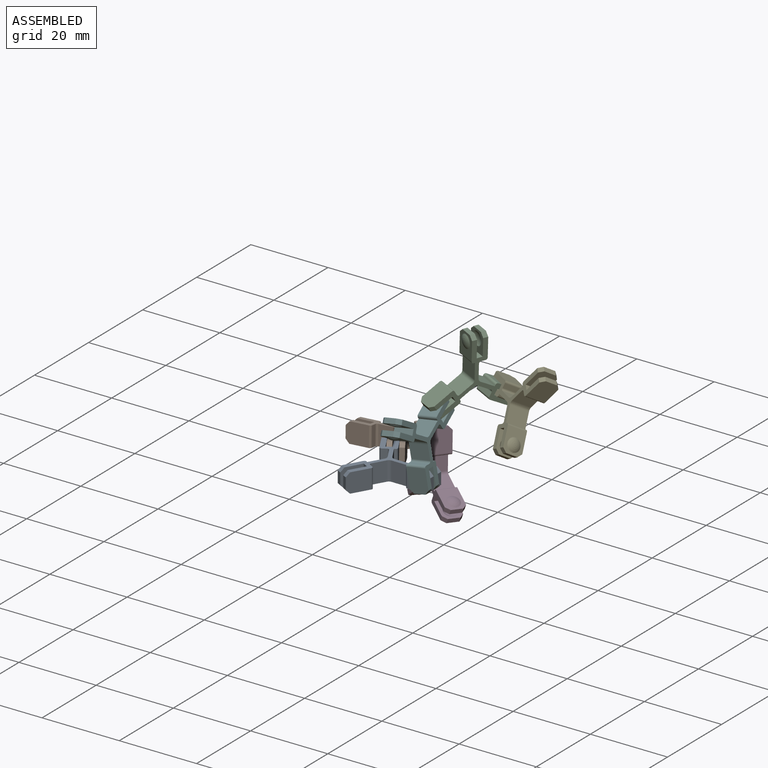
[diagram: assembled view]
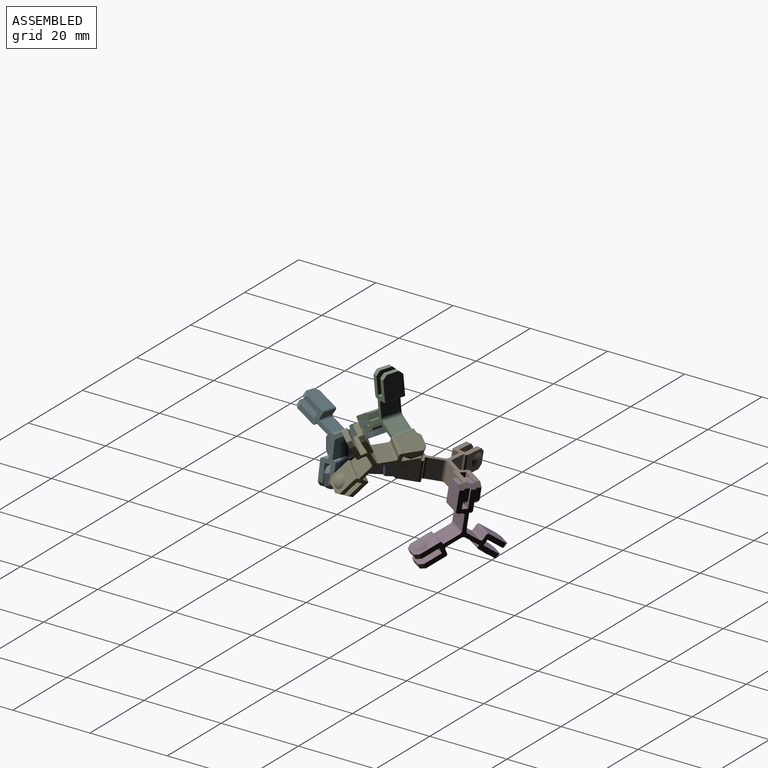
[diagram: assembled view, second angle]
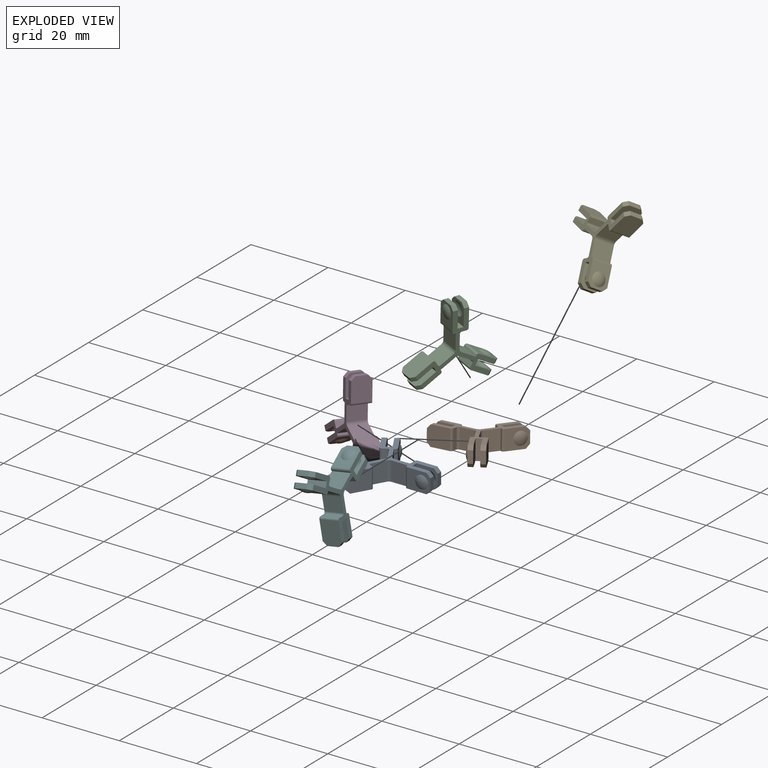
[diagram: exploded view]
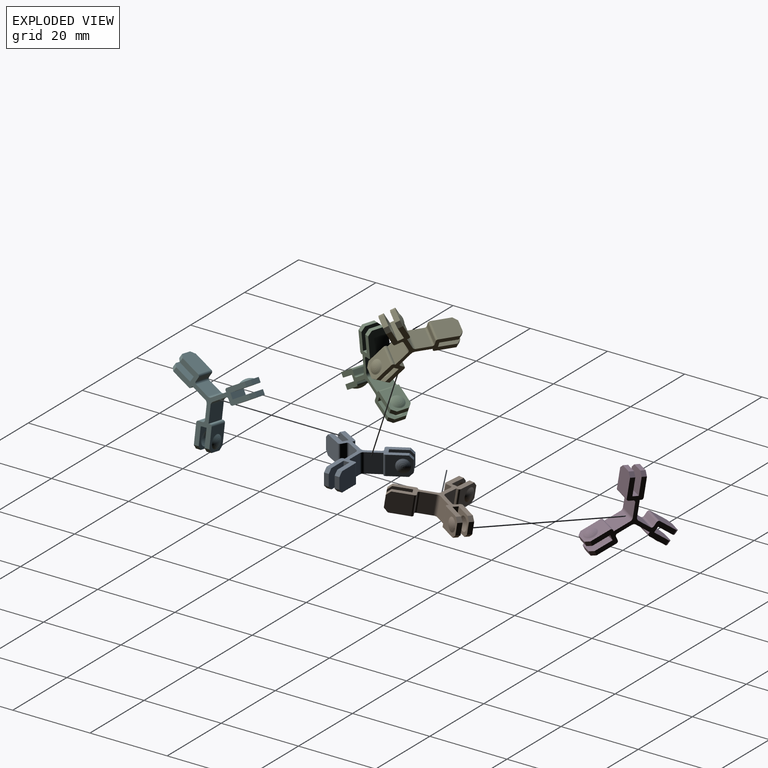
[diagram: exploded view, second angle]
ASSEMBLY  parts=6 mates=5
PART A: 71 faces, bbox 21.9x19.5x5 mm
  f0: plane 20.19x18.05mm, normal (0,0,1), area 60.3mm2, adj f1,f2,f3,f4,f6,f7,f8,f15
  f1: plane 5x1.15mm, normal (0,1,0), area 5.8mm2, adj f0,f10,f21,f23
  f2: plane 5.5x5mm, normal (1,0,0), area 26.5mm2, adj f0,f3,f9,f10,f14,f16
  f3: plane 5x1.5mm, normal (0,-1,0), area 7.5mm2, adj f0,f2,f4,f10
  f4: plane 5.5x5mm, normal (-1,0,0), area 16.9mm2, adj f0,f3,f5,f10,f12,f13,f15
  f5: plane 3x1.25mm, normal (0,-1,0), area 3.8mm2, adj f4,f6,f13,f15
  f6: plane 6x5mm, normal (1,0,0), area 29mm2, adj f0,f5,f10,f13,f15,f23
  f7: plane 5x0.35mm, normal (0,1,0), area 1.8mm2, adj f0,f10,f20,f22
  f8: plane 6x5mm, normal (-1,0,0), area 19.9mm2, adj f0,f9,f10,f14,f16,f18,f22
  f9: plane 3x1.25mm, normal (0,-1,0), area 3.8mm2, adj f2,f8,f14,f16
  f10: plane 20.19x18.05mm, normal (0,0,-1), area 60.3mm2, adj f1,f2,f3,f4,f6,f7,f8,f13
  f11: plane 0.04x0.04mm, normal (-1,0,0), area 0mm2, adj f12
  f12: torus R=0.02mm, axis (1,0,0), area 10.8mm2, adj f4,f11
  f13: plane 1.25x1mm, normal (0,-0.71,-0.71), area 1.8mm2, adj f4,f5,f6,f10
  f14: plane 1.25x1mm, normal (0,-0.71,-0.71), area 1.8mm2, adj f2,f8,f9,f10
  f15: plane 1.25x1mm, normal (0,-0.71,0.71), area 1.8mm2, adj f0,f4,f5,f6
  f16: plane 1.25x1mm, normal (0,-0.71,0.71), area 1.8mm2, adj f0,f2,f8,f9
  f17: plane 0.08x0.08mm, normal (-1,0,0), area 0mm2, adj f18
  f18: torus R=0.04mm, axis (1,0,0), area 9.9mm2, adj f8,f17
  f19: plane 5x3.63mm, normal (1,0,0), area 18.2mm2, adj f0,f10,f21,f70
  f20: plane 5x4.13mm, normal (-1,0,0), area 20.7mm2, adj f0,f7,f10,f69
  f21: cylinder r=0.5mm len=5mm, axis (0,0,-1), area 3.9mm2, adj f0,f1,f10,f19
  f22: cylinder r=0.5mm len=5mm, axis (0,0,1), area 3.9mm2, adj f0,f7,f8,f10
  f23: cylinder r=0.5mm len=5mm, axis (0,0,-1), area 3.9mm2, adj f0,f1,f6,f10
  f24: plane 5x1mm, normal (-0.87,-0.5,0), area 5.8mm2, adj f0,f10,f43,f45
  f25: plane 5x4.76mm, normal (-0.5,0.87,0), area 26.5mm2, adj f0,f10,f26,f32,f36,f38
  f26: plane 5x1.3mm, normal (0.87,0.5,0), area 7.5mm2, adj f0,f10,f25,f27
  f27: plane 5x4.76mm, normal (0.5,-0.87,0), area 16.9mm2, adj f0,f10,f26,f28,f34,f35,f37
  f28: plane 3x1.08mm, normal (0.87,0.5,0), area 3.7mm2, adj f27,f29,f35,f37
  f29: plane 5.2x5mm, normal (-0.5,0.87,0), area 29mm2, adj f0,f10,f28,f35,f37,f45
  f30: plane 5x0.3mm, normal (-0.87,-0.5,0), area 1.8mm2, adj f0,f10,f42,f44
  f31: plane 5.2x5mm, normal (0.5,-0.87,0), area 19.9mm2, adj f0,f10,f32,f36,f38,f40,f44
  f32: plane 3x1.08mm, normal (0.87,0.5,0), area 3.7mm2, adj f25,f31,f36,f38
  f33: plane 0.04x0.03mm, normal (0.5,-0.87,0), area 0mm2, adj f34
  f34: torus R=0.02mm, axis (-0.5,0.87,0), area 10.8mm2, adj f27,f33
  f35: plane 1.58x1.49mm, normal (0.61,0.35,-0.71), area 1.8mm2, adj f10,f27,f28,f29
  f36: plane 1.58x1.49mm, normal (0.61,0.35,-0.71), area 1.8mm2, adj f10,f25,f31,f32
  f37: plane 1.58x1.49mm, normal (0.61,0.35,0.71), area 1.8mm2, adj f0,f27,f28,f29
  f38: plane 1.58x1.49mm, normal (0.61,0.35,0.71), area 1.8mm2, adj f0,f25,f31,f32
  f39: plane 0.08x0.07mm, normal (0.5,-0.87,0), area 0mm2, adj f40
  f40: torus R=0.04mm, axis (-0.5,0.87,0), area 9.9mm2, adj f31,f39
  f41: plane 5x3.15mm, normal (-0.5,0.87,0), area 18.2mm2, adj f0,f10,f43,f68
  f42: plane 5x3.58mm, normal (0.5,-0.87,0), area 20.7mm2, adj f0,f10,f30,f70
  f43: cylinder r=0.5mm len=5mm, axis (0,0,-1), area 3.9mm2, adj f0,f10,f24,f41
  f44: cylinder r=0.5mm len=5mm, axis (0,0,1), area 3.9mm2, adj f0,f10,f30,f31
  f45: cylinder r=0.5mm len=5mm, axis (0,0,-1), area 3.9mm2, adj f0,f10,f24,f29
  f46: plane 5x1mm, normal (0.87,-0.5,0), area 5.8mm2, adj f0,f10,f65,f67
  f47: plane 5x4.76mm, normal (-0.5,-0.87,0), area 26.5mm2, adj f0,f10,f48,f54,f58,f60
  f48: plane 5x1.3mm, normal (-0.87,0.5,0), area 7.5mm2, adj f0,f10,f47,f49
  f49: plane 5x4.76mm, normal (0.5,0.87,0), area 16.9mm2, adj f0,f10,f48,f50,f56,f57,f59
  f50: plane 3x1.08mm, normal (-0.87,0.5,0), area 3.7mm2, adj f49,f51,f57,f59
  f51: plane 5.2x5mm, normal (-0.5,-0.87,0), area 29mm2, adj f0,f10,f50,f57,f59,f67
  f52: plane 5x0.3mm, normal (0.87,-0.5,0), area 1.8mm2, adj f0,f10,f64,f66
  f53: plane 5.2x5mm, normal (0.5,0.87,0), area 19.9mm2, adj f0,f10,f54,f58,f60,f62,f66
  f54: plane 3x1.08mm, normal (-0.87,0.5,0), area 3.7mm2, adj f47,f53,f58,f60
  f55: plane 0.04x0.03mm, normal (0.5,0.87,0), area 0mm2, adj f56
  f56: torus R=0.02mm, axis (-0.5,-0.87,0), area 10.8mm2, adj f49,f55
  f57: plane 1.58x1.49mm, normal (-0.61,0.35,-0.71), area 1.8mm2, adj f10,f49,f50,f51
  f58: plane 1.58x1.49mm, normal (-0.61,0.35,-0.71), area 1.8mm2, adj f10,f47,f53,f54
  f59: plane 1.58x1.49mm, normal (-0.61,0.35,0.71), area 1.8mm2, adj f0,f49,f50,f51
  f60: plane 1.58x1.49mm, normal (-0.61,0.35,0.71), area 1.8mm2, adj f0,f47,f53,f54
  f61: plane 0.08x0.07mm, normal (0.5,0.87,0), area 0mm2, adj f62
  f62: torus R=0.04mm, axis (-0.5,-0.87,0), area 9.9mm2, adj f53,f61
  f63: plane 5x3.15mm, normal (-0.5,-0.87,0), area 18.2mm2, adj f0,f10,f65,f69
  f64: plane 5x3.58mm, normal (0.5,0.87,0), area 20.7mm2, adj f0,f10,f52,f68
  f65: cylinder r=0.5mm len=5mm, axis (0,0,-1), area 3.9mm2, adj f0,f10,f46,f63
  f66: cylinder r=0.5mm len=5mm, axis (0,0,1), area 3.9mm2, adj f0,f10,f52,f53
  f67: cylinder r=0.5mm len=5mm, axis (0,0,-1), area 3.9mm2, adj f0,f10,f46,f51
  f68: cylinder r=1mm len=5mm, axis (0,0,-1), area 5.2mm2, adj f0,f10,f41,f64
  f69: cylinder r=1mm len=5mm, axis (0,0,-1), area 5.2mm2, adj f0,f10,f20,f63
  f70: cylinder r=1mm len=5mm, axis (0,0,-1), area 5.2mm2, adj f0,f10,f19,f42
PART B: same geometry as A
PART C: same geometry as A
PART D: same geometry as A
PART E: same geometry as A
PART F: same geometry as A
PLACE A rot(axis=(0,0,1),90deg) t=(0,0,-5)mm
PLACE B rot(axis=(-0.05,0.05,1),150.1deg) t=(-9.03,15.64,-6.27)mm
PLACE C rot(axis=(-0.72,-0.48,0.5),103.6deg) t=(12.64,14.09,15.76)mm
PLACE D rot(axis=(-0.49,-0.55,-0.67),164.5deg) t=(-5.16,20.64,-13.42)mm
PLACE E rot(axis=(0.02,0.89,0.45),149.1deg) t=(19.94,15.84,12.81)mm
PLACE F rot(axis=(0.61,-0.61,-0.51),125.9deg) t=(10.11,0,7.04)mm
MATE revolute F.f18 <-> A.f18  axis (0,1,0) through (9.25,1.85,-2.5)mm
MATE revolute C.f62 <-> F.f62  axis (-0.15,-0.5,0.85) through (7.12,8.93,9.59)mm
MATE revolute E.f40 <-> C.f40  axis (0.25,0.41,0.87) through (12.86,21.89,9.89)mm
MATE revolute B.f62 <-> A.f40  axis (0.87,0.5,0) through (-6.22,7.09,-2.5)mm
MATE revolute D.f40 <-> B.f18  axis (0.86,-0.49,0.12) through (-6.14,24.83,-4.66)mm
